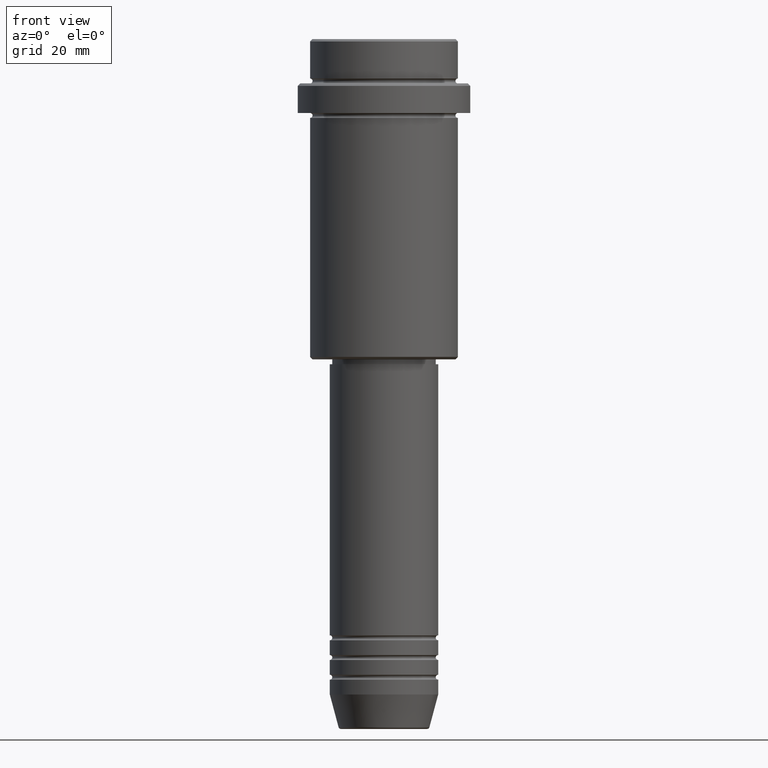
[diagram: clean part render]
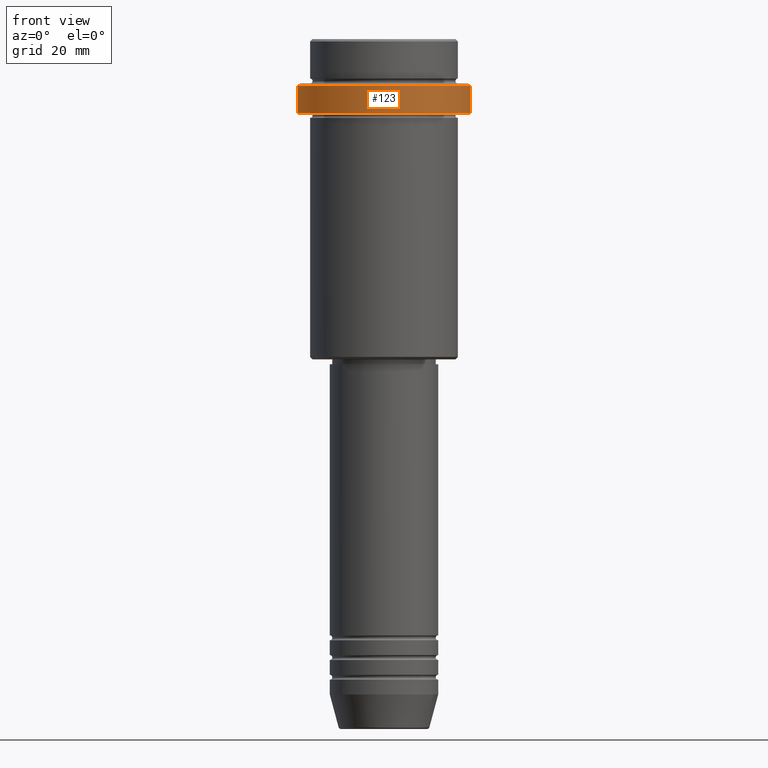
[diagram: same view with one face highlighted and labeled with its STEP entity id]
A machine part, front view. The second image highlights one B-rep face of the part: STEP entity #123.
In plain terms, the highlighted cylindrical surface (partial cylindrical patch) has radius 17.5 mm, axis along (-0, -0, 1).
Its self-contained STEP definition (entity closure, byte-faithful):
#2 = VERTEX_POINT ( 'NONE', #1401 ) ;
#73 = DIRECTION ( 'NONE',  ( 1.000000000000000000, 0.000000000000000000, 0.000000000000000000 ) ) ;
#87 = CARTESIAN_POINT ( 'NONE',  ( 17.50000000000000000, 0.000000000000000000, -15.00000000000000000 ) ) ;
#95 = CARTESIAN_POINT ( 'NONE',  ( 0.000000000000000000, 0.000000000000000000, 0.000000000000000000 ) ) ;
#109 = LINE ( 'NONE', #451, #1112 ) ;
#123 = ADVANCED_FACE ( 'NONE', ( #980 ), #516, .T. ) ;
#138 = EDGE_CURVE ( 'NONE', #2, #805, #109, .T. ) ;
#166 = CIRCLE ( 'NONE', #352, 17.50000000000000000 ) ;
#180 = CARTESIAN_POINT ( 'NONE',  ( 0.000000000000000000, 0.000000000000000000, -15.00000000000000000 ) ) ;
#271 = VERTEX_POINT ( 'NONE', #87 ) ;
#303 = CARTESIAN_POINT ( 'NONE',  ( -17.50000000000000000, 2.143131898507868248E-15, -9.500000000000000000 ) ) ;
#352 = AXIS2_PLACEMENT_3D ( 'NONE', #855, #965, #1293 ) ;
#356 = CIRCLE ( 'NONE', #730, 17.50000000000000000 ) ;
#359 = ORIENTED_EDGE ( 'NONE', *, *, #369, .T. ) ;
#369 = EDGE_CURVE ( 'NONE', #1276, #805, #166, .T. ) ;
#397 = ORIENTED_EDGE ( 'NONE', *, *, #767, .T. ) ;
#451 = CARTESIAN_POINT ( 'NONE',  ( -17.50000000000000000, 2.143131898507868248E-15, 0.000000000000000000 ) ) ;
#516 = CYLINDRICAL_SURFACE ( 'NONE', #589, 17.50000000000000000 ) ;
#531 = DIRECTION ( 'NONE',  ( -0.000000000000000000, -0.000000000000000000, 1.000000000000000000 ) ) ;
#533 = EDGE_CURVE ( 'NONE', #271, #1276, #565, .T. ) ;
#565 = LINE ( 'NONE', #1214, #913 ) ;
#589 = AXIS2_PLACEMENT_3D ( 'NONE', #95, #856, #751 ) ;
#630 = ORIENTED_EDGE ( 'NONE', *, *, #533, .T. ) ;
#730 = AXIS2_PLACEMENT_3D ( 'NONE', #180, #531, #73 ) ;
#751 = DIRECTION ( 'NONE',  ( 1.000000000000000000, 0.000000000000000000, 0.000000000000000000 ) ) ;
#767 = EDGE_CURVE ( 'NONE', #2, #271, #356, .T. ) ;
#805 = VERTEX_POINT ( 'NONE', #303 ) ;
#811 = EDGE_LOOP ( 'NONE', ( #1365, #397, #630, #359 ) ) ;
#813 = DIRECTION ( 'NONE',  ( -0.000000000000000000, -0.000000000000000000, 1.000000000000000000 ) ) ;
#855 = CARTESIAN_POINT ( 'NONE',  ( 0.000000000000000000, 0.000000000000000000, -9.500000000000000000 ) ) ;
#856 = DIRECTION ( 'NONE',  ( -0.000000000000000000, -0.000000000000000000, 1.000000000000000000 ) ) ;
#873 = CARTESIAN_POINT ( 'NONE',  ( 17.50000000000000000, 0.000000000000000000, -9.500000000000000000 ) ) ;
#913 = VECTOR ( 'NONE', #813, 1000.000000000000000 ) ;
#965 = DIRECTION ( 'NONE',  ( 0.000000000000000000, 0.000000000000000000, -1.000000000000000000 ) ) ;
#980 = FACE_OUTER_BOUND ( 'NONE', #811, .T. ) ;
#1112 = VECTOR ( 'NONE', #1227, 1000.000000000000000 ) ;
#1214 = CARTESIAN_POINT ( 'NONE',  ( 17.50000000000000000, 0.000000000000000000, 0.000000000000000000 ) ) ;
#1227 = DIRECTION ( 'NONE',  ( -0.000000000000000000, -0.000000000000000000, 1.000000000000000000 ) ) ;
#1276 = VERTEX_POINT ( 'NONE', #873 ) ;
#1293 = DIRECTION ( 'NONE',  ( 1.000000000000000000, 0.000000000000000000, 0.000000000000000000 ) ) ;
#1365 = ORIENTED_EDGE ( 'NONE', *, *, #138, .F. ) ;
#1401 = CARTESIAN_POINT ( 'NONE',  ( -17.50000000000000000, 2.143131898507868248E-15, -15.00000000000000000 ) ) ;